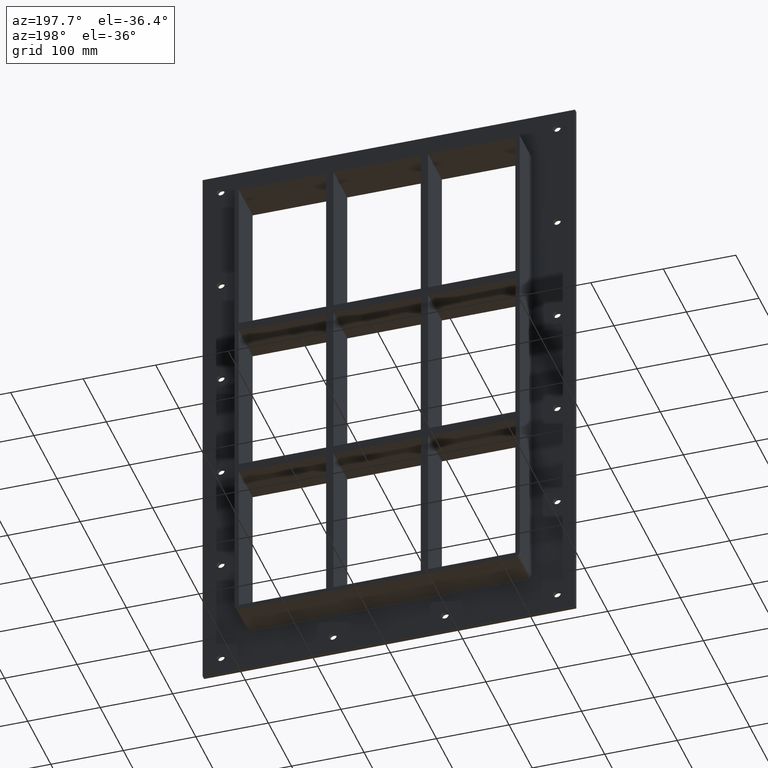
[diagram: clean part render]
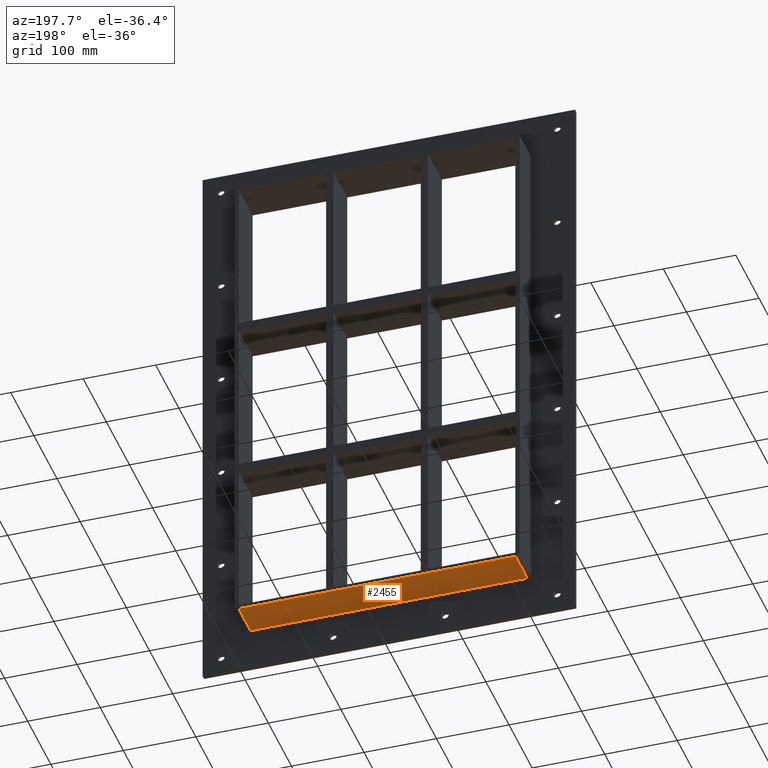
[diagram: same view with one face highlighted and labeled with its STEP entity id]
A machine part, auxiliary view. The second image highlights one B-rep face of the part: STEP entity #2455.
In plain terms, the highlighted planar face has unit normal (0, 0, -1).
Its self-contained STEP definition (entity closure, byte-faithful):
#1009=CARTESIAN_POINT('',(190.75000000000003,57.0,-345.00000000000006));
#1010=VERTEX_POINT('',#1009);
#1020=CARTESIAN_POINT('',(-190.75000000000003,57.0,-345.00000000000006));
#1021=VERTEX_POINT('',#1020);
#1022=CARTESIAN_POINT('',(190.75000000000006,57.0,-345.00000000000006));
#1023=DIRECTION('',(-1.0,0.0,0.0));
#1024=VECTOR('',#1023,381.50000000000006);
#1025=LINE('',#1022,#1024);
#1026=EDGE_CURVE('',#1010,#1021,#1025,.T.);
#1967=CARTESIAN_POINT('',(-190.75000000000003,6.000000000000001,-345.00000000000006));
#1968=VERTEX_POINT('',#1967);
#1978=CARTESIAN_POINT('',(190.75000000000003,6.000000000000001,-345.00000000000006));
#1979=VERTEX_POINT('',#1978);
#1980=CARTESIAN_POINT('',(190.75000000000003,6.000000000000001,-345.00000000000006));
#1981=DIRECTION('',(-1.0,0.0,0.0));
#1982=VECTOR('',#1981,381.50000000000006);
#1983=LINE('',#1980,#1982);
#1984=EDGE_CURVE('',#1979,#1968,#1983,.T.);
#2394=CARTESIAN_POINT('',(190.75000000000003,6.000000000000001,-345.00000000000006));
#2395=DIRECTION('',(0.0,1.0,0.0));
#2396=VECTOR('',#2395,51.0);
#2397=LINE('',#2394,#2396);
#2398=EDGE_CURVE('',#1979,#1010,#2397,.T.);
#2439=CARTESIAN_POINT('',(196.75000000000006,0.0,-345.00000000000006));
#2440=DIRECTION('',(0.0,0.0,-1.0));
#2441=DIRECTION('',(-1.0,0.0,0.0));
#2442=AXIS2_PLACEMENT_3D('',#2439,#2440,#2441);
#2443=PLANE('',#2442);
#2444=ORIENTED_EDGE('',*,*,#1984,.T.);
#2445=CARTESIAN_POINT('',(-190.75000000000003,57.0,-345.00000000000006));
#2446=DIRECTION('',(0.0,-1.0,0.0));
#2447=VECTOR('',#2446,51.0);
#2448=LINE('',#2445,#2447);
#2449=EDGE_CURVE('',#1021,#1968,#2448,.T.);
#2450=ORIENTED_EDGE('',*,*,#2449,.F.);
#2451=ORIENTED_EDGE('',*,*,#1026,.F.);
#2452=ORIENTED_EDGE('',*,*,#2398,.F.);
#2453=EDGE_LOOP('',(#2444,#2450,#2451,#2452));
#2454=FACE_OUTER_BOUND('',#2453,.T.);
#2455=ADVANCED_FACE('',(#2454),#2443,.T.);